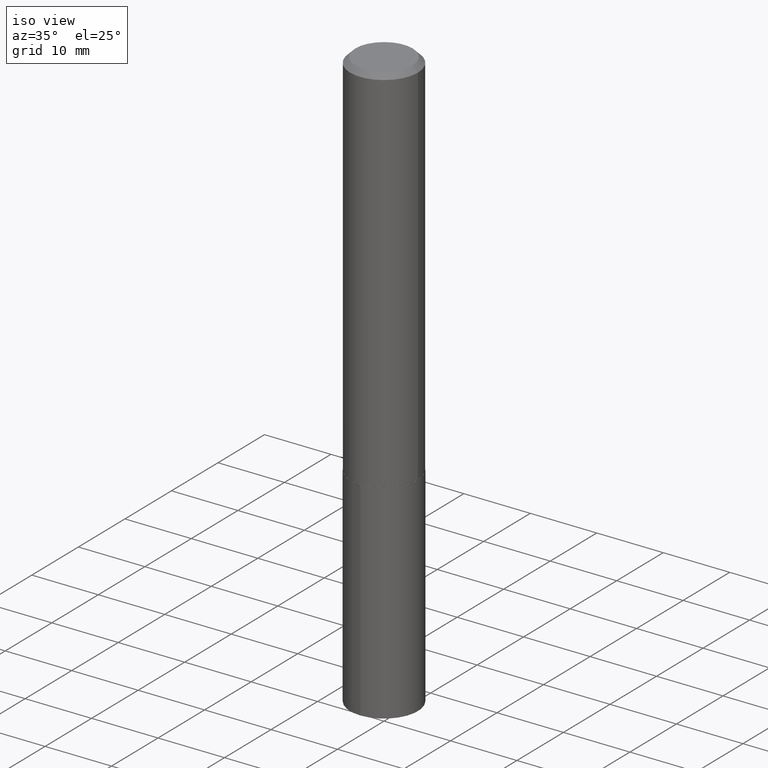
[diagram: clean part render]
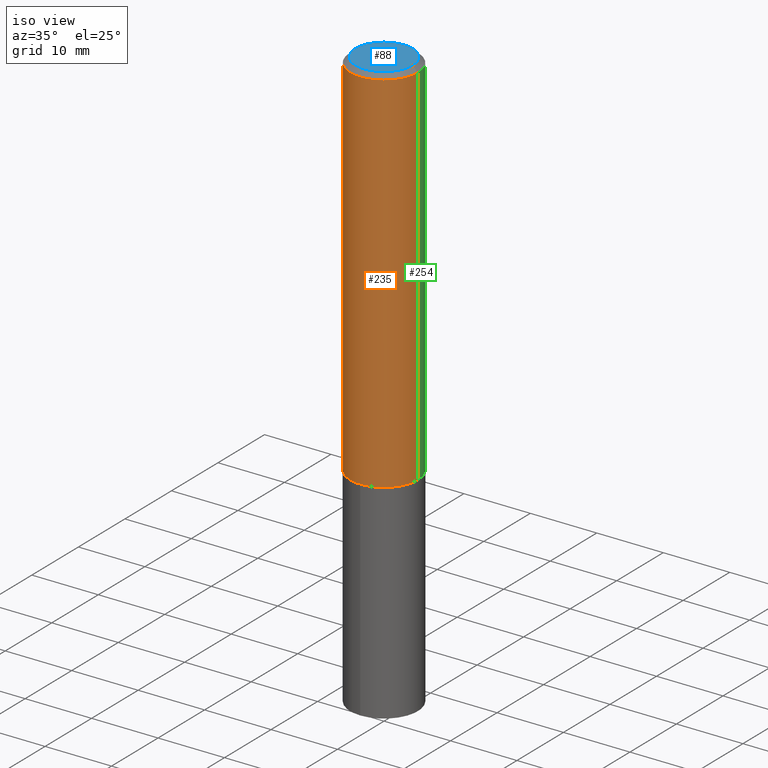
[diagram: same view with three faces highlighted in distinct colors, each labeled with its STEP entity id]
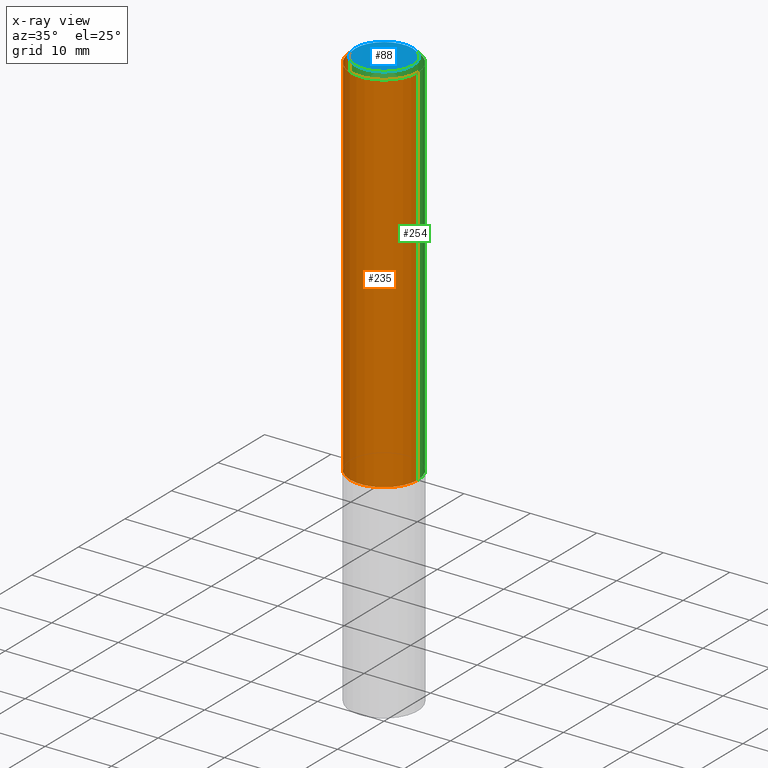
[diagram: x-ray of the same camera — body ghosted, the three highlighted faces saturated]
A machine part, iso view with three faces highlighted in distinct colors.
The next image is the same camera in x-ray (body ghosted, the three faces saturated) — at least one of them is partly hidden behind the body in this view.
Their STEP definitions:

[orange] entity #235 — the highlighted cylindrical surface (partial cylindrical patch) has radius 5.1003 mm, axis along (-0, 0, 1).
#4 = CARTESIAN_POINT ( 'NONE',  ( 0.2008000000000001450, -1.402178905679403337E-15, 9.791362965798246718E-30 ) ) ;
#37 = DIRECTION ( 'NONE',  ( -2.445468806185136877E-29, 3.491481338843145188E-15, 1.000000000000000000 ) ) ;
#49 = VECTOR ( 'NONE', #252, 39.37007874015748143 ) ;
#54 = ORIENTED_EDGE ( 'NONE', *, *, #125, .F. ) ;
#56 = VECTOR ( 'NONE', #37, 39.37007874015748143 ) ;
#64 = LINE ( 'NONE', #4, #49 ) ;
#84 = CIRCLE ( 'NONE', #152, 0.2008000000000000063 ) ;
#98 = CARTESIAN_POINT ( 'NONE',  ( 0.2008000000000002838, -9.125684775334325109E-15, -2.212099999999999511 ) ) ;
#125 = EDGE_CURVE ( 'NONE', #204, #176, #84, .T. ) ;
#135 = DIRECTION ( 'NONE',  ( -2.445468806185136597E-29, 3.491481338843145583E-15, 1.000000000000000000 ) ) ;
#145 = EDGE_LOOP ( 'NONE', ( #350, #332, #289, #54 ) ) ;
#149 = DIRECTION ( 'NONE',  ( 1.000000000000000000, -6.982962677686266711E-15, 4.876176775795936353E-29 ) ) ;
#152 = AXIS2_PLACEMENT_3D ( 'NONE', #225, #135, #342 ) ;
#161 = CARTESIAN_POINT ( 'NONE',  ( -0.2008000000000001450, 1.426769813406282204E-15, -9.877221661231856994E-30 ) ) ;
#166 = VERTEX_POINT ( 'NONE', #211 ) ;
#176 = VERTEX_POINT ( 'NONE', #271 ) ;
#184 = CARTESIAN_POINT ( 'NONE',  ( 0.000000000000000000, 0.000000000000000000, 0.000000000000000000 ) ) ;
#186 = CIRCLE ( 'NONE', #268, 0.2008000000000002838 ) ;
#189 = DIRECTION ( 'NONE',  ( -2.445468806185136597E-29, 3.491481338843145583E-15, 1.000000000000000000 ) ) ;
#204 = VERTEX_POINT ( 'NONE', #322 ) ;
#206 = FACE_OUTER_BOUND ( 'NONE', #145, .T. ) ;
#211 = CARTESIAN_POINT ( 'NONE',  ( -0.2008000000000002838, -6.296736056248638780E-15, -2.212099999999999511 ) ) ;
#225 = CARTESIAN_POINT ( 'NONE',  ( 7.642090019328607041E-31, -1.091087918388490883E-16, -0.03125000000000022898 ) ) ;
#227 = LINE ( 'NONE', #161, #56 ) ;
#235 = ADVANCED_FACE ( 'NONE', ( #206 ), #299, .T. ) ;
#252 = DIRECTION ( 'NONE',  ( -2.445468806185136877E-29, 3.491481338843145188E-15, 1.000000000000000000 ) ) ;
#268 = AXIS2_PLACEMENT_3D ( 'NONE', #365, #314, #371 ) ;
#271 = CARTESIAN_POINT ( 'NONE',  ( 0.2008000000000000063, -1.511287697518251451E-15, -0.03125000000000022898 ) ) ;
#278 = EDGE_CURVE ( 'NONE', #166, #204, #227, .T. ) ;
#289 = ORIENTED_EDGE ( 'NONE', *, *, #357, .T. ) ;
#299 = CYLINDRICAL_SURFACE ( 'NONE', #361, 0.2008000000000001450 ) ;
#314 = DIRECTION ( 'NONE',  ( -2.445468806185136597E-29, 3.491481338843145583E-15, 1.000000000000000000 ) ) ;
#322 = CARTESIAN_POINT ( 'NONE',  ( -0.2008000000000000063, -2.489537517340601852E-15, -0.03125000000000022898 ) ) ;
#332 = ORIENTED_EDGE ( 'NONE', *, *, #366, .T. ) ;
#342 = DIRECTION ( 'NONE',  ( 1.000000000000000000, -6.982962677686266711E-15, 0.000000000000000000 ) ) ;
#350 = ORIENTED_EDGE ( 'NONE', *, *, #278, .F. ) ;
#357 = EDGE_CURVE ( 'NONE', #381, #176, #64, .T. ) ;
#361 = AXIS2_PLACEMENT_3D ( 'NONE', #184, #189, #149 ) ;
#365 = CARTESIAN_POINT ( 'NONE',  ( 5.409621546162140031E-29, -7.723505869654921378E-15, -2.212099999999999511 ) ) ;
#366 = EDGE_CURVE ( 'NONE', #166, #381, #186, .T. ) ;
#371 = DIRECTION ( 'NONE',  ( 1.000000000000000000, -6.982962677686262766E-15, 0.000000000000000000 ) ) ;
#381 = VERTEX_POINT ( 'NONE', #98 ) ;

[blue] entity #88 — the highlighted planar face has unit normal (0, -0, -1).
#12 = CARTESIAN_POINT ( 'NONE',  ( -0.1695500000000000063, 1.238515717921129883E-15, 4.837354856547397732E-19 ) ) ;
#42 = ORIENTED_EDGE ( 'NONE', *, *, #232, .T. ) ;
#44 = DIRECTION ( 'NONE',  ( 1.000000000000000000, -6.982962677686267499E-15, 4.876167740117660532E-29 ) ) ;
#50 = DIRECTION ( 'NONE',  ( -2.445468806185136597E-29, 3.491481338843145583E-15, 1.000000000000000000 ) ) ;
#60 = AXIS2_PLACEMENT_3D ( 'NONE', #351, #209, #273 ) ;
#87 = PLANE ( 'NONE',  #60 ) ;
#88 = ADVANCED_FACE ( 'NONE', ( #386 ), #87, .F. ) ;
#95 = DIRECTION ( 'NONE',  ( -2.445468806185136597E-29, 3.491481338843145583E-15, 1.000000000000000000 ) ) ;
#110 = AXIS2_PLACEMENT_3D ( 'NONE', #263, #50, #44 ) ;
#137 = CARTESIAN_POINT ( 'NONE',  ( 0.1695500000000000063, -1.324947112656768051E-15, 4.837354856719826240E-19 ) ) ;
#172 = CIRCLE ( 'NONE', #384, 0.1695500000000000063 ) ;
#177 = VERTEX_POINT ( 'NONE', #12 ) ;
#192 = CIRCLE ( 'NONE', #110, 0.1695500000000000063 ) ;
#209 = DIRECTION ( 'NONE',  ( 2.438088387897960049E-29, -3.491481338843145188E-15, -1.000000000000000000 ) ) ;
#213 = VERTEX_POINT ( 'NONE', #137 ) ;
#223 = CARTESIAN_POINT ( 'NONE',  ( -1.182960040634198066E-47, 1.688953421129324663E-33, 4.837354856632103020E-19 ) ) ;
#232 = EDGE_CURVE ( 'NONE', #213, #177, #192, .T. ) ;
#248 = ORIENTED_EDGE ( 'NONE', *, *, #284, .T. ) ;
#263 = CARTESIAN_POINT ( 'NONE',  ( -1.182960040634198066E-47, 1.688953421129324663E-33, 4.837354856632103020E-19 ) ) ;
#267 = EDGE_LOOP ( 'NONE', ( #248, #42 ) ) ;
#273 = DIRECTION ( 'NONE',  ( -1.000000000000000000, 6.982962677686265922E-15, -4.876176775795935793E-29 ) ) ;
#284 = EDGE_CURVE ( 'NONE', #177, #213, #172, .T. ) ;
#333 = DIRECTION ( 'NONE',  ( 1.000000000000000000, -6.982962677686267499E-15, 4.876167740117660532E-29 ) ) ;
#351 = CARTESIAN_POINT ( 'NONE',  ( -5.914800203170990329E-48, 8.444767105646623317E-34, 2.418677428316051510E-19 ) ) ;
#384 = AXIS2_PLACEMENT_3D ( 'NONE', #223, #95, #333 ) ;
#386 = FACE_OUTER_BOUND ( 'NONE', #267, .T. ) ;

[green] entity #254 — the highlighted cylindrical surface (partial cylindrical patch) has radius 5.1003 mm, axis along (-0, 0, 1).
#4 = CARTESIAN_POINT ( 'NONE',  ( 0.2008000000000001450, -1.402178905679403337E-15, 9.791362965798246718E-30 ) ) ;
#17 = DIRECTION ( 'NONE',  ( 1.000000000000000000, -6.982962677686266711E-15, 0.000000000000000000 ) ) ;
#20 = DIRECTION ( 'NONE',  ( -2.445468806185136597E-29, 3.491481338843145583E-15, 1.000000000000000000 ) ) ;
#37 = DIRECTION ( 'NONE',  ( -2.445468806185136877E-29, 3.491481338843145188E-15, 1.000000000000000000 ) ) ;
#48 = CARTESIAN_POINT ( 'NONE',  ( 5.409621546162140031E-29, -7.723505869654921378E-15, -2.212099999999999511 ) ) ;
#49 = VECTOR ( 'NONE', #252, 39.37007874015748143 ) ;
#56 = VECTOR ( 'NONE', #37, 39.37007874015748143 ) ;
#64 = LINE ( 'NONE', #4, #49 ) ;
#90 = CYLINDRICAL_SURFACE ( 'NONE', #324, 0.2008000000000001450 ) ;
#92 = AXIS2_PLACEMENT_3D ( 'NONE', #48, #20, #274 ) ;
#94 = DIRECTION ( 'NONE',  ( -2.445468806185136597E-29, 3.491481338843145583E-15, 1.000000000000000000 ) ) ;
#98 = CARTESIAN_POINT ( 'NONE',  ( 0.2008000000000002838, -9.125684775334325109E-15, -2.212099999999999511 ) ) ;
#107 = ORIENTED_EDGE ( 'NONE', *, *, #357, .F. ) ;
#122 = CIRCLE ( 'NONE', #92, 0.2008000000000002838 ) ;
#144 = ORIENTED_EDGE ( 'NONE', *, *, #168, .F. ) ;
#159 = FACE_OUTER_BOUND ( 'NONE', #291, .T. ) ;
#161 = CARTESIAN_POINT ( 'NONE',  ( -0.2008000000000001450, 1.426769813406282204E-15, -9.877221661231856994E-30 ) ) ;
#166 = VERTEX_POINT ( 'NONE', #211 ) ;
#168 = EDGE_CURVE ( 'NONE', #176, #204, #334, .T. ) ;
#176 = VERTEX_POINT ( 'NONE', #271 ) ;
#197 = EDGE_CURVE ( 'NONE', #381, #166, #122, .T. ) ;
#204 = VERTEX_POINT ( 'NONE', #322 ) ;
#211 = CARTESIAN_POINT ( 'NONE',  ( -0.2008000000000002838, -6.296736056248638780E-15, -2.212099999999999511 ) ) ;
#227 = LINE ( 'NONE', #161, #56 ) ;
#245 = CARTESIAN_POINT ( 'NONE',  ( 0.000000000000000000, 0.000000000000000000, 0.000000000000000000 ) ) ;
#252 = DIRECTION ( 'NONE',  ( -2.445468806185136877E-29, 3.491481338843145188E-15, 1.000000000000000000 ) ) ;
#254 = ADVANCED_FACE ( 'NONE', ( #159 ), #90, .T. ) ;
#271 = CARTESIAN_POINT ( 'NONE',  ( 0.2008000000000000063, -1.511287697518251451E-15, -0.03125000000000022898 ) ) ;
#274 = DIRECTION ( 'NONE',  ( 1.000000000000000000, -6.982962677686262766E-15, 0.000000000000000000 ) ) ;
#278 = EDGE_CURVE ( 'NONE', #166, #204, #227, .T. ) ;
#285 = DIRECTION ( 'NONE',  ( 1.000000000000000000, -6.982962677686266711E-15, 4.876176775795936353E-29 ) ) ;
#291 = EDGE_LOOP ( 'NONE', ( #347, #295, #144, #107 ) ) ;
#295 = ORIENTED_EDGE ( 'NONE', *, *, #278, .T. ) ;
#297 = CARTESIAN_POINT ( 'NONE',  ( 7.642090019328607041E-31, -1.091087918388490883E-16, -0.03125000000000022898 ) ) ;
#301 = AXIS2_PLACEMENT_3D ( 'NONE', #297, #327, #17 ) ;
#322 = CARTESIAN_POINT ( 'NONE',  ( -0.2008000000000000063, -2.489537517340601852E-15, -0.03125000000000022898 ) ) ;
#324 = AXIS2_PLACEMENT_3D ( 'NONE', #245, #94, #285 ) ;
#327 = DIRECTION ( 'NONE',  ( -2.445468806185136597E-29, 3.491481338843145583E-15, 1.000000000000000000 ) ) ;
#334 = CIRCLE ( 'NONE', #301, 0.2008000000000000063 ) ;
#347 = ORIENTED_EDGE ( 'NONE', *, *, #197, .T. ) ;
#357 = EDGE_CURVE ( 'NONE', #381, #176, #64, .T. ) ;
#381 = VERTEX_POINT ( 'NONE', #98 ) ;